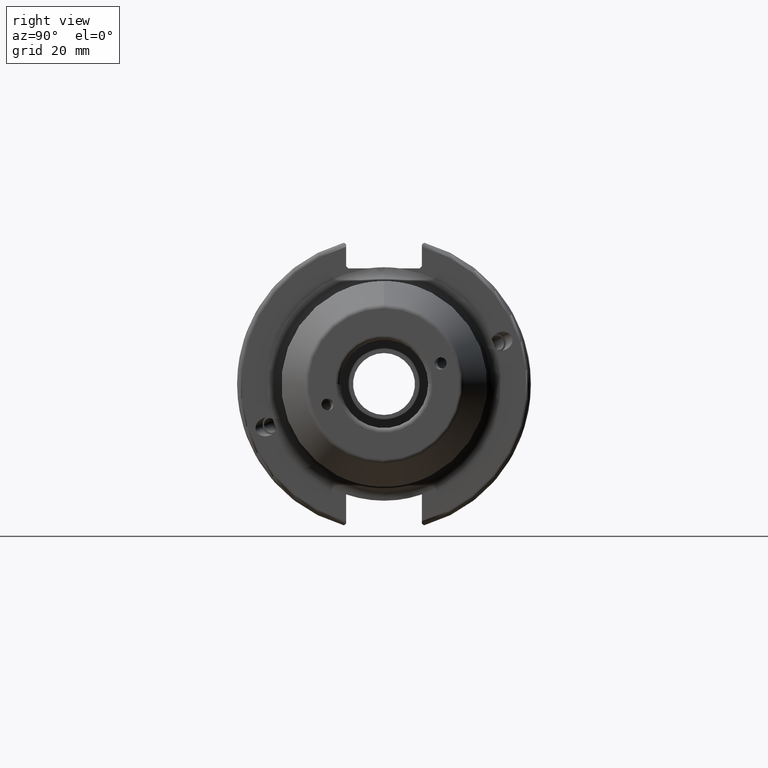
[diagram: clean part render]
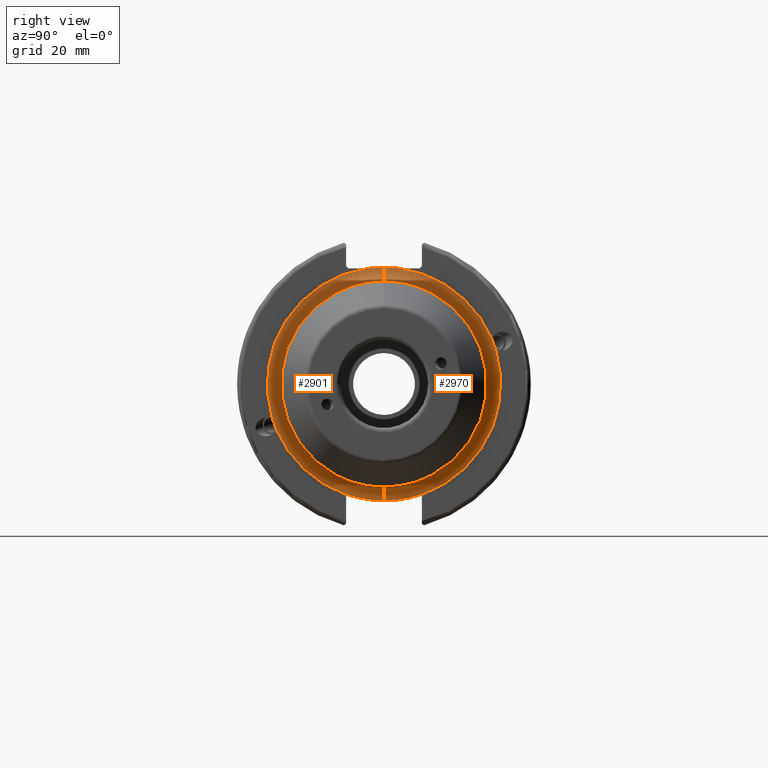
[diagram: same view with one multi-face feature highlighted, each face labeled with its STEP entity id]
A machine part, right view. The highlighted faces form ONE feature: a constant-radius fillet chain: 2 tangent blend faces with common blend radius 3 mm. The faces share edges in the B-rep.
Their STEP definitions:
[1] entity #2901 (Torus):
#441=CARTESIAN_POINT('',(2.205E1,0.E0,0.E0));
#442=DIRECTION('',(1.E0,0.E0,0.E0));
#443=DIRECTION('',(0.E0,0.E0,1.E0));
#444=AXIS2_PLACEMENT_3D('',#441,#442,#443);
#460=CARTESIAN_POINT('',(1.905E1,0.E0,0.E0));
#461=DIRECTION('',(1.E0,0.E0,0.E0));
#462=DIRECTION('',(0.E0,-9.565535336495E-1,-2.915567479285E-1));
#463=AXIS2_PLACEMENT_3D('',#460,#461,#462);
#465=CARTESIAN_POINT('',(1.905E1,0.E0,0.E0));
#466=DIRECTION('',(1.E0,0.E0,0.E0));
#467=DIRECTION('',(0.E0,0.E0,1.E0));
#468=AXIS2_PLACEMENT_3D('',#465,#466,#467);
#470=CARTESIAN_POINT('',(2.205E1,0.E0,2.5225E1));
#471=DIRECTION('',(0.E0,-1.E0,0.E0));
#472=DIRECTION('',(-1.E0,0.E0,0.E0));
#473=AXIS2_PLACEMENT_3D('',#470,#471,#472);
#475=CARTESIAN_POINT('',(2.205E1,0.E0,-2.5225E1));
#476=DIRECTION('',(0.E0,1.E0,0.E0));
#477=DIRECTION('',(-1.E0,0.E0,0.E0));
#478=AXIS2_PLACEMENT_3D('',#475,#476,#477);
#480=CARTESIAN_POINT('',(1.905E1,0.E0,0.E0));
#481=DIRECTION('',(1.E0,0.E0,0.E0));
#482=DIRECTION('',(0.E0,-3.246778989098E-1,-9.458246465173E-1));
#483=AXIS2_PLACEMENT_3D('',#480,#481,#482);
#532=CARTESIAN_POINT('',(1.905E1,0.E0,0.E0));
#533=DIRECTION('',(-1.E0,0.E0,0.E0));
#534=DIRECTION('',(0.E0,-3.246778989098E-1,-9.458246465173E-1));
#535=AXIS2_PLACEMENT_3D('',#532,#533,#534);
#546=CARTESIAN_POINT('',(1.905E1,0.E0,0.E0));
#547=DIRECTION('',(-1.E0,0.E0,0.E0));
#548=DIRECTION('',(0.E0,-9.565535336495E-1,-2.915567479285E-1));
#549=AXIS2_PLACEMENT_3D('',#546,#547,#548);
#597=CARTESIAN_POINT('',(1.905E1,-2.321132820859E1,-9.875974270570E0));
#599=CARTESIAN_POINT('',(1.905E1,-2.412906288631E1,-7.354518966496E0));
#2384=CARTESIAN_POINT('',(1.905E1,0.E0,2.5225E1));
#2385=CARTESIAN_POINT('',(2.205E1,0.E0,2.2225E1));
#2386=VERTEX_POINT('',#2384);
#2387=VERTEX_POINT('',#2385);
#2396=CARTESIAN_POINT('',(1.905E1,0.E0,-2.5225E1));
#2397=CARTESIAN_POINT('',(2.205E1,0.E0,-2.2225E1));
#2398=VERTEX_POINT('',#2396);
#2399=VERTEX_POINT('',#2397);
#2409=VERTEX_POINT('',#597);
#2410=VERTEX_POINT('',#599);
#2420=CARTESIAN_POINT('',(1.905E1,-8.19E0,-2.385842670840E1));
#2421=VERTEX_POINT('',#2420);
#2422=CARTESIAN_POINT('',(1.905E1,-3.361640224652E0,2.5E1));
#2423=VERTEX_POINT('',#2422);
#2879=CARTESIAN_POINT('',(2.205E1,0.E0,0.E0));
#2880=DIRECTION('',(-1.E0,0.E0,0.E0));
#2881=DIRECTION('',(0.E0,0.E0,-1.E0));
#2882=AXIS2_PLACEMENT_3D('',#2879,#2880,#2881);
#2883=TOROIDAL_SURFACE('',#2882,2.5225E1,3.E0);
#2885=ORIENTED_EDGE('',*,*,#2884,.T.);
#2887=ORIENTED_EDGE('',*,*,#2886,.F.);
#2889=ORIENTED_EDGE('',*,*,#2888,.T.);
#2891=ORIENTED_EDGE('',*,*,#2890,.F.);
#2893=ORIENTED_EDGE('',*,*,#2892,.T.);
#2894=ORIENTED_EDGE('',*,*,#2849,.T.);
#2896=ORIENTED_EDGE('',*,*,#2895,.F.);
#2898=ORIENTED_EDGE('',*,*,#2897,.F.);
#2899=EDGE_LOOP('',(#2885,#2887,#2889,#2891,#2893,#2894,#2896,#2898));
#2900=FACE_OUTER_BOUND('',#2899,.F.);
#2901=ADVANCED_FACE('',(#2900),#2883,.F.);
#445=CIRCLE('',#444,2.2225E1);
#464=CIRCLE('',#463,2.5225E1);
#469=CIRCLE('',#468,2.5225E1);
#474=CIRCLE('',#473,3.E0);
#479=CIRCLE('',#478,3.E0);
#484=CIRCLE('',#483,2.5225E1);
#536=CIRCLE('',#535,2.5225E1);
#550=CIRCLE('',#549,2.5225E1);
#2849=EDGE_CURVE('',#2387,#2399,#445,.T.);
#2884=EDGE_CURVE('',#2421,#2409,#536,.T.);
#2886=EDGE_CURVE('',#2410,#2409,#464,.T.);
#2888=EDGE_CURVE('',#2410,#2423,#550,.T.);
#2890=EDGE_CURVE('',#2386,#2423,#469,.T.);
#2892=EDGE_CURVE('',#2386,#2387,#474,.T.);
#2895=EDGE_CURVE('',#2398,#2399,#479,.T.);
#2897=EDGE_CURVE('',#2421,#2398,#484,.T.);
[2] entity #2970 (Torus):
#354=CARTESIAN_POINT('',(2.205E1,0.E0,0.E0));
#355=DIRECTION('',(-1.E0,0.E0,0.E0));
#356=DIRECTION('',(0.E0,0.E0,1.E0));
#357=AXIS2_PLACEMENT_3D('',#354,#355,#356);
#470=CARTESIAN_POINT('',(2.205E1,0.E0,2.5225E1));
#471=DIRECTION('',(0.E0,-1.E0,0.E0));
#472=DIRECTION('',(-1.E0,0.E0,0.E0));
#473=AXIS2_PLACEMENT_3D('',#470,#471,#472);
#475=CARTESIAN_POINT('',(2.205E1,0.E0,-2.5225E1));
#476=DIRECTION('',(0.E0,1.E0,0.E0));
#477=DIRECTION('',(-1.E0,0.E0,0.E0));
#478=AXIS2_PLACEMENT_3D('',#475,#476,#477);
#485=CARTESIAN_POINT('',(1.905E1,0.E0,0.E0));
#486=DIRECTION('',(-1.E0,0.E0,0.E0));
#487=DIRECTION('',(0.E0,1.332662130685E-1,9.910802775025E-1));
#488=AXIS2_PLACEMENT_3D('',#485,#486,#487);
#499=CARTESIAN_POINT('',(1.905E1,0.E0,0.E0));
#500=DIRECTION('',(-1.E0,0.E0,0.E0));
#501=DIRECTION('',(0.E0,9.565535336495E-1,2.915567479285E-1));
#502=AXIS2_PLACEMENT_3D('',#499,#500,#501);
#579=CARTESIAN_POINT('',(1.905E1,0.E0,0.E0));
#580=DIRECTION('',(-1.E0,0.E0,0.E0));
#581=DIRECTION('',(0.E0,9.201715840870E-1,3.915153328273E-1));
#582=AXIS2_PLACEMENT_3D('',#579,#580,#581);
#584=CARTESIAN_POINT('',(1.905E1,0.E0,0.E0));
#585=DIRECTION('',(-1.E0,0.E0,0.E0));
#586=DIRECTION('',(0.E0,3.246778989098E-1,-9.458246465173E-1));
#587=AXIS2_PLACEMENT_3D('',#584,#585,#586);
#589=CARTESIAN_POINT('',(1.905E1,0.E0,0.E0));
#590=DIRECTION('',(-1.E0,0.E0,0.E0));
#591=DIRECTION('',(0.E0,0.E0,1.E0));
#592=AXIS2_PLACEMENT_3D('',#589,#590,#591);
#1958=CARTESIAN_POINT('',(1.905E1,2.321132820859E1,9.875974270570E0));
#1960=CARTESIAN_POINT('',(1.905E1,2.412906288631E1,7.354518966496E0));
#2384=CARTESIAN_POINT('',(1.905E1,0.E0,2.5225E1));
#2385=CARTESIAN_POINT('',(2.205E1,0.E0,2.2225E1));
#2386=VERTEX_POINT('',#2384);
#2387=VERTEX_POINT('',#2385);
#2396=CARTESIAN_POINT('',(1.905E1,0.E0,-2.5225E1));
#2397=CARTESIAN_POINT('',(2.205E1,0.E0,-2.2225E1));
#2398=VERTEX_POINT('',#2396);
#2399=VERTEX_POINT('',#2397);
#2412=VERTEX_POINT('',#1958);
#2413=VERTEX_POINT('',#1960);
#2415=CARTESIAN_POINT('',(1.905E1,8.19E0,-2.385842670840E1));
#2417=VERTEX_POINT('',#2415);
#2418=CARTESIAN_POINT('',(1.905E1,3.361640224652E0,2.5E1));
#2419=VERTEX_POINT('',#2418);
#2952=CARTESIAN_POINT('',(2.205E1,0.E0,0.E0));
#2953=DIRECTION('',(-1.E0,0.E0,0.E0));
#2954=DIRECTION('',(0.E0,0.E0,-1.E0));
#2955=AXIS2_PLACEMENT_3D('',#2952,#2953,#2954);
#2956=TOROIDAL_SURFACE('',#2955,2.5225E1,3.E0);
#2957=ORIENTED_EDGE('',*,*,#2907,.T.);
#2959=ORIENTED_EDGE('',*,*,#2958,.T.);
#2960=ORIENTED_EDGE('',*,*,#2919,.T.);
#2962=ORIENTED_EDGE('',*,*,#2961,.T.);
#2963=ORIENTED_EDGE('',*,*,#2895,.T.);
#2964=ORIENTED_EDGE('',*,*,#2794,.F.);
#2965=ORIENTED_EDGE('',*,*,#2892,.F.);
#2967=ORIENTED_EDGE('',*,*,#2966,.T.);
#2968=EDGE_LOOP('',(#2957,#2959,#2960,#2962,#2963,#2964,#2965,#2967));
#2969=FACE_OUTER_BOUND('',#2968,.F.);
#2970=ADVANCED_FACE('',(#2969),#2956,.F.);
#358=CIRCLE('',#357,2.2225E1);
#474=CIRCLE('',#473,3.E0);
#479=CIRCLE('',#478,3.E0);
#489=CIRCLE('',#488,2.5225E1);
#503=CIRCLE('',#502,2.5225E1);
#583=CIRCLE('',#582,2.5225E1);
#588=CIRCLE('',#587,2.5225E1);
#593=CIRCLE('',#592,2.5225E1);
#2794=EDGE_CURVE('',#2387,#2399,#358,.T.);
#2892=EDGE_CURVE('',#2386,#2387,#474,.T.);
#2895=EDGE_CURVE('',#2398,#2399,#479,.T.);
#2907=EDGE_CURVE('',#2419,#2412,#489,.T.);
#2919=EDGE_CURVE('',#2413,#2417,#503,.T.);
#2958=EDGE_CURVE('',#2412,#2413,#583,.T.);
#2961=EDGE_CURVE('',#2417,#2398,#588,.T.);
#2966=EDGE_CURVE('',#2386,#2419,#593,.T.);